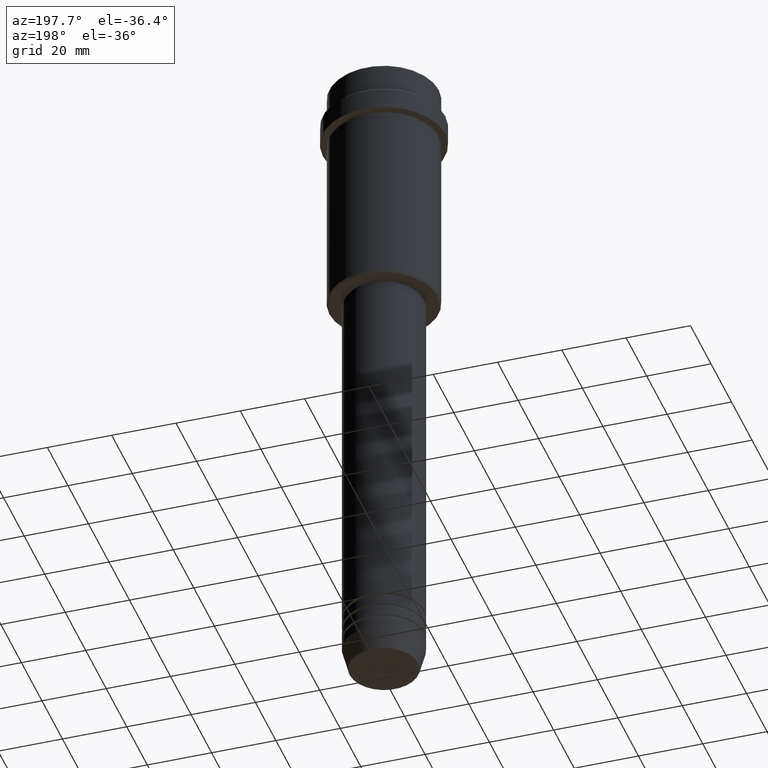
[diagram: clean part render]
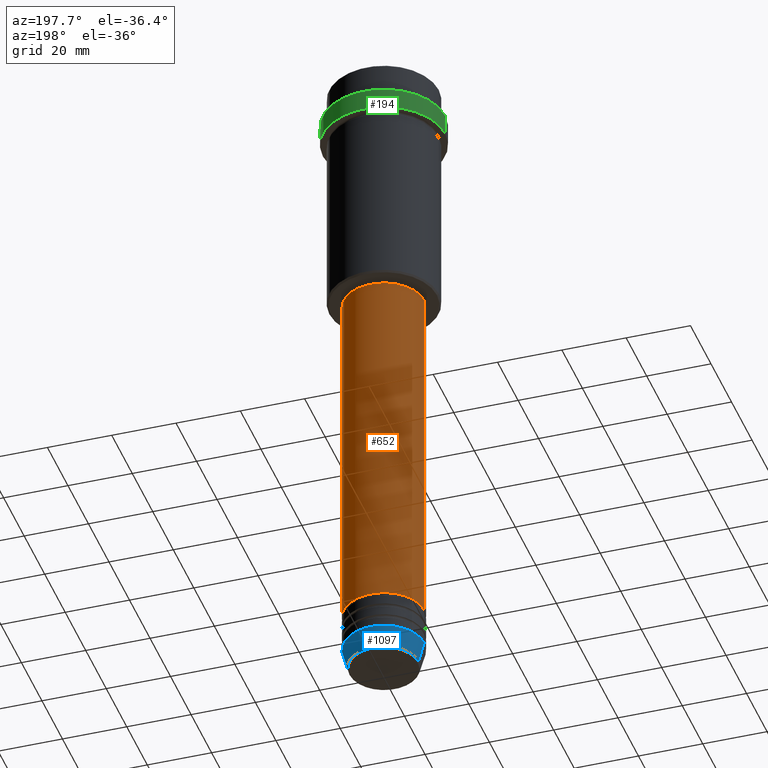
[diagram: same view with three faces highlighted in distinct colors, each labeled with its STEP entity id]
A machine part, auxiliary view with three faces highlighted in distinct colors.
Their STEP definitions:

[orange] entity #652 — the highlighted cylindrical surface (partial cylindrical patch) has radius 12.5 mm, axis along (-0, -0, 1).
#8 = EDGE_CURVE ( 'NONE', #973, #1053, #754, .T. ) ;
#15 = CARTESIAN_POINT ( 'NONE',  ( -12.50000000000000000, 1.530808498934191521E-15, 0.000000000000000000 ) ) ;
#43 = CARTESIAN_POINT ( 'NONE',  ( 0.000000000000000000, 0.000000000000000000, -77.00000000000000000 ) ) ;
#68 = CARTESIAN_POINT ( 'NONE',  ( 0.000000000000000000, 0.000000000000000000, 0.000000000000000000 ) ) ;
#76 = ORIENTED_EDGE ( 'NONE', *, *, #1104, .T. ) ;
#90 = VERTEX_POINT ( 'NONE', #1377 ) ;
#105 = ORIENTED_EDGE ( 'NONE', *, *, #1349, .F. ) ;
#205 = DIRECTION ( 'NONE',  ( -0.000000000000000000, -0.000000000000000000, 1.000000000000000000 ) ) ;
#292 = CARTESIAN_POINT ( 'NONE',  ( 12.50000000000000000, 0.000000000000000000, -190.9999999999999147 ) ) ;
#314 = VECTOR ( 'NONE', #205, 1000.000000000000000 ) ;
#391 = FACE_OUTER_BOUND ( 'NONE', #1398, .T. ) ;
#407 = CIRCLE ( 'NONE', #964, 12.50000000000000000 ) ;
#485 = CYLINDRICAL_SURFACE ( 'NONE', #846, 12.50000000000000000 ) ;
#499 = DIRECTION ( 'NONE',  ( -0.000000000000000000, -0.000000000000000000, 1.000000000000000000 ) ) ;
#541 = LINE ( 'NONE', #15, #314 ) ;
#652 = ADVANCED_FACE ( 'NONE', ( #391 ), #485, .T. ) ;
#654 = CARTESIAN_POINT ( 'NONE',  ( 12.50000000000000000, 0.000000000000000000, 0.000000000000000000 ) ) ;
#670 = VERTEX_POINT ( 'NONE', #1108 ) ;
#684 = CARTESIAN_POINT ( 'NONE',  ( 0.000000000000000000, 0.000000000000000000, -190.9999999999999147 ) ) ;
#727 = CARTESIAN_POINT ( 'NONE',  ( -12.50000000000000000, 1.530808498934191521E-15, -190.9999999999999147 ) ) ;
#754 = CIRCLE ( 'NONE', #981, 12.50000000000000000 ) ;
#792 = DIRECTION ( 'NONE',  ( 1.000000000000000000, 0.000000000000000000, 0.000000000000000000 ) ) ;
#795 = DIRECTION ( 'NONE',  ( 1.000000000000000000, 0.000000000000000000, 0.000000000000000000 ) ) ;
#803 = DIRECTION ( 'NONE',  ( 1.000000000000000000, 0.000000000000000000, 0.000000000000000000 ) ) ;
#846 = AXIS2_PLACEMENT_3D ( 'NONE', #68, #499, #803 ) ;
#909 = ORIENTED_EDGE ( 'NONE', *, *, #1066, .F. ) ;
#964 = AXIS2_PLACEMENT_3D ( 'NONE', #43, #1009, #795 ) ;
#973 = VERTEX_POINT ( 'NONE', #292 ) ;
#981 = AXIS2_PLACEMENT_3D ( 'NONE', #684, #1328, #792 ) ;
#1009 = DIRECTION ( 'NONE',  ( -0.000000000000000000, -0.000000000000000000, 1.000000000000000000 ) ) ;
#1053 = VERTEX_POINT ( 'NONE', #727 ) ;
#1066 = EDGE_CURVE ( 'NONE', #973, #90, #1294, .T. ) ;
#1070 = VECTOR ( 'NONE', #1417, 1000.000000000000000 ) ;
#1104 = EDGE_CURVE ( 'NONE', #1053, #670, #541, .T. ) ;
#1108 = CARTESIAN_POINT ( 'NONE',  ( -12.50000000000000000, 1.530808498934191521E-15, -77.00000000000000000 ) ) ;
#1222 = ORIENTED_EDGE ( 'NONE', *, *, #8, .T. ) ;
#1294 = LINE ( 'NONE', #654, #1070 ) ;
#1328 = DIRECTION ( 'NONE',  ( -0.000000000000000000, -0.000000000000000000, 1.000000000000000000 ) ) ;
#1349 = EDGE_CURVE ( 'NONE', #90, #670, #407, .T. ) ;
#1377 = CARTESIAN_POINT ( 'NONE',  ( 12.50000000000000000, 0.000000000000000000, -77.00000000000000000 ) ) ;
#1398 = EDGE_LOOP ( 'NONE', ( #1222, #76, #105, #909 ) ) ;
#1417 = DIRECTION ( 'NONE',  ( -0.000000000000000000, -0.000000000000000000, 1.000000000000000000 ) ) ;

[blue] entity #1097 — the highlighted conical surface has half-angle 15 deg.
#51 = DIRECTION ( 'NONE',  ( -0.2588190451025213501, 3.169619151431772337E-17, 0.9659258262890680902 ) ) ;
#54 = ORIENTED_EDGE ( 'NONE', *, *, #902, .T. ) ;
#129 = CIRCLE ( 'NONE', #494, 10.72365507213718416 ) ;
#142 = VERTEX_POINT ( 'NONE', #1155 ) ;
#162 = LINE ( 'NONE', #1253, #1335 ) ;
#183 = CARTESIAN_POINT ( 'NONE',  ( -12.50000000000000000, 1.530808498934191521E-15, -203.0000000000000000 ) ) ;
#198 = LINE ( 'NONE', #520, #1238 ) ;
#330 = DIRECTION ( 'NONE',  ( -0.000000000000000000, -0.000000000000000000, 1.000000000000000000 ) ) ;
#335 = CARTESIAN_POINT ( 'NONE',  ( 0.000000000000000000, 0.000000000000000000, -203.0000000000000000 ) ) ;
#398 = CARTESIAN_POINT ( 'NONE',  ( 0.000000000000000000, 0.000000000000000000, -209.6294095225512990 ) ) ;
#420 = DIRECTION ( 'NONE',  ( 1.000000000000000000, 0.000000000000000000, 0.000000000000000000 ) ) ;
#439 = EDGE_CURVE ( 'NONE', #1353, #458, #1134, .T. ) ;
#458 = VERTEX_POINT ( 'NONE', #183 ) ;
#481 = CARTESIAN_POINT ( 'NONE',  ( 12.50000000000000000, 0.000000000000000000, -203.0000000000000000 ) ) ;
#494 = AXIS2_PLACEMENT_3D ( 'NONE', #398, #936, #610 ) ;
#520 = CARTESIAN_POINT ( 'NONE',  ( 12.50000000000000000, 0.000000000000000000, -203.0000000000000000 ) ) ;
#577 = AXIS2_PLACEMENT_3D ( 'NONE', #836, #330, #420 ) ;
#610 = DIRECTION ( 'NONE',  ( 1.000000000000000000, 0.000000000000000000, 0.000000000000000000 ) ) ;
#680 = CARTESIAN_POINT ( 'NONE',  ( -10.72365507213718416, 1.422038742429750121E-15, -209.6294095225512990 ) ) ;
#836 = CARTESIAN_POINT ( 'NONE',  ( 0.000000000000000000, 0.000000000000000000, -203.0000000000000000 ) ) ;
#859 = EDGE_CURVE ( 'NONE', #142, #1353, #198, .T. ) ;
#869 = ORIENTED_EDGE ( 'NONE', *, *, #439, .F. ) ;
#902 = EDGE_CURVE ( 'NONE', #142, #1341, #129, .T. ) ;
#921 = CONICAL_SURFACE ( 'NONE', #983, 12.50000000000000000, 0.2617993877991500740 ) ;
#936 = DIRECTION ( 'NONE',  ( -0.000000000000000000, -0.000000000000000000, 1.000000000000000000 ) ) ;
#965 = DIRECTION ( 'NONE',  ( -0.000000000000000000, -0.000000000000000000, 1.000000000000000000 ) ) ;
#983 = AXIS2_PLACEMENT_3D ( 'NONE', #335, #965, #1084 ) ;
#987 = ORIENTED_EDGE ( 'NONE', *, *, #996, .T. ) ;
#996 = EDGE_CURVE ( 'NONE', #1341, #458, #162, .T. ) ;
#1084 = DIRECTION ( 'NONE',  ( 1.000000000000000000, 0.000000000000000000, 0.000000000000000000 ) ) ;
#1097 = ADVANCED_FACE ( 'NONE', ( #1286 ), #921, .T. ) ;
#1134 = CIRCLE ( 'NONE', #577, 12.50000000000000000 ) ;
#1155 = CARTESIAN_POINT ( 'NONE',  ( 10.72365507213718416, 0.000000000000000000, -209.6294095225512990 ) ) ;
#1197 = EDGE_LOOP ( 'NONE', ( #54, #987, #869, #1237 ) ) ;
#1237 = ORIENTED_EDGE ( 'NONE', *, *, #859, .F. ) ;
#1238 = VECTOR ( 'NONE', #1250, 1000.000000000000000 ) ;
#1250 = DIRECTION ( 'NONE',  ( 0.2588190451025213501, 0.000000000000000000, 0.9659258262890680902 ) ) ;
#1253 = CARTESIAN_POINT ( 'NONE',  ( -12.50000000000000000, 1.530808498934191521E-15, -203.0000000000000000 ) ) ;
#1286 = FACE_OUTER_BOUND ( 'NONE', #1197, .T. ) ;
#1335 = VECTOR ( 'NONE', #51, 1000.000000000000000 ) ;
#1341 = VERTEX_POINT ( 'NONE', #680 ) ;
#1353 = VERTEX_POINT ( 'NONE', #481 ) ;

[green] entity #194 — the highlighted cylindrical surface (partial cylindrical patch) has radius 19 mm, axis along (-0, -0, 1).
#140 = DIRECTION ( 'NONE',  ( 1.000000000000000000, 0.000000000000000000, 0.000000000000000000 ) ) ;
#151 = EDGE_CURVE ( 'NONE', #1268, #523, #234, .T. ) ;
#194 = ADVANCED_FACE ( 'NONE', ( #1310 ), #676, .T. ) ;
#224 = ORIENTED_EDGE ( 'NONE', *, *, #151, .F. ) ;
#234 = LINE ( 'NONE', #550, #1111 ) ;
#258 = EDGE_CURVE ( 'NONE', #1102, #523, #821, .T. ) ;
#344 = CARTESIAN_POINT ( 'NONE',  ( 18.99999999999997158, 0.000000000000000000, -10.49999999999998934 ) ) ;
#352 = DIRECTION ( 'NONE',  ( -0.000000000000000000, -0.000000000000000000, 1.000000000000000000 ) ) ;
#403 = VECTOR ( 'NONE', #1060, 1000.000000000000000 ) ;
#430 = ORIENTED_EDGE ( 'NONE', *, *, #258, .T. ) ;
#479 = CARTESIAN_POINT ( 'NONE',  ( 18.99999999999997158, 0.000000000000000000, -17.00000000000000000 ) ) ;
#506 = EDGE_CURVE ( 'NONE', #1307, #1102, #738, .T. ) ;
#523 = VERTEX_POINT ( 'NONE', #344 ) ;
#526 = EDGE_CURVE ( 'NONE', #1268, #1307, #729, .T. ) ;
#549 = ORIENTED_EDGE ( 'NONE', *, *, #526, .T. ) ;
#550 = CARTESIAN_POINT ( 'NONE',  ( 18.99999999999997158, 0.000000000000000000, 0.000000000000000000 ) ) ;
#632 = CARTESIAN_POINT ( 'NONE',  ( -18.99999999999997158, 2.326828918379967420E-15, 0.000000000000000000 ) ) ;
#657 = DIRECTION ( 'NONE',  ( 0.000000000000000000, 0.000000000000000000, -1.000000000000000000 ) ) ;
#676 = CYLINDRICAL_SURFACE ( 'NONE', #1179, 18.99999999999997158 ) ;
#729 = CIRCLE ( 'NONE', #958, 18.99999999999997158 ) ;
#738 = LINE ( 'NONE', #632, #403 ) ;
#821 = CIRCLE ( 'NONE', #917, 18.99999999999997158 ) ;
#858 = CARTESIAN_POINT ( 'NONE',  ( -18.99999999999997158, 2.326828918379967420E-15, -10.49999999999998934 ) ) ;
#885 = ORIENTED_EDGE ( 'NONE', *, *, #506, .T. ) ;
#917 = AXIS2_PLACEMENT_3D ( 'NONE', #1209, #657, #977 ) ;
#958 = AXIS2_PLACEMENT_3D ( 'NONE', #1342, #1075, #140 ) ;
#977 = DIRECTION ( 'NONE',  ( 1.000000000000000000, 0.000000000000000000, 0.000000000000000000 ) ) ;
#989 = CARTESIAN_POINT ( 'NONE',  ( 0.000000000000000000, 0.000000000000000000, 0.000000000000000000 ) ) ;
#1001 = DIRECTION ( 'NONE',  ( 1.000000000000000000, 0.000000000000000000, 0.000000000000000000 ) ) ;
#1060 = DIRECTION ( 'NONE',  ( -0.000000000000000000, -0.000000000000000000, 1.000000000000000000 ) ) ;
#1075 = DIRECTION ( 'NONE',  ( -0.000000000000000000, -0.000000000000000000, 1.000000000000000000 ) ) ;
#1080 = DIRECTION ( 'NONE',  ( -0.000000000000000000, -0.000000000000000000, 1.000000000000000000 ) ) ;
#1102 = VERTEX_POINT ( 'NONE', #858 ) ;
#1111 = VECTOR ( 'NONE', #352, 1000.000000000000000 ) ;
#1157 = EDGE_LOOP ( 'NONE', ( #549, #885, #430, #224 ) ) ;
#1179 = AXIS2_PLACEMENT_3D ( 'NONE', #989, #1080, #1001 ) ;
#1209 = CARTESIAN_POINT ( 'NONE',  ( 0.000000000000000000, 0.000000000000000000, -10.49999999999998934 ) ) ;
#1268 = VERTEX_POINT ( 'NONE', #479 ) ;
#1307 = VERTEX_POINT ( 'NONE', #1355 ) ;
#1310 = FACE_OUTER_BOUND ( 'NONE', #1157, .T. ) ;
#1342 = CARTESIAN_POINT ( 'NONE',  ( 0.000000000000000000, 0.000000000000000000, -17.00000000000000000 ) ) ;
#1355 = CARTESIAN_POINT ( 'NONE',  ( -18.99999999999997158, 2.326828918379967420E-15, -17.00000000000000000 ) ) ;